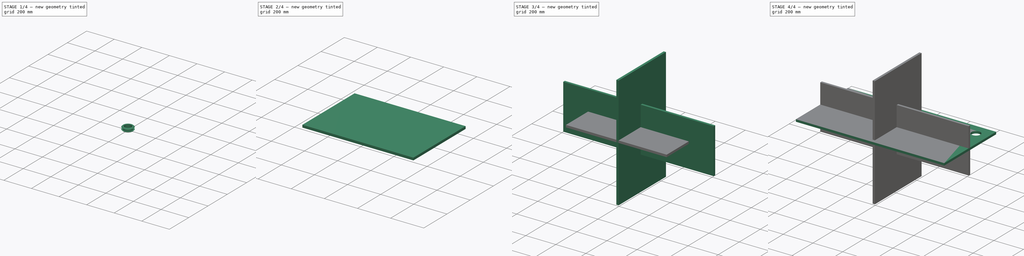
[diagram: build sequence overview — one tinted view per stage of 4, left to right]
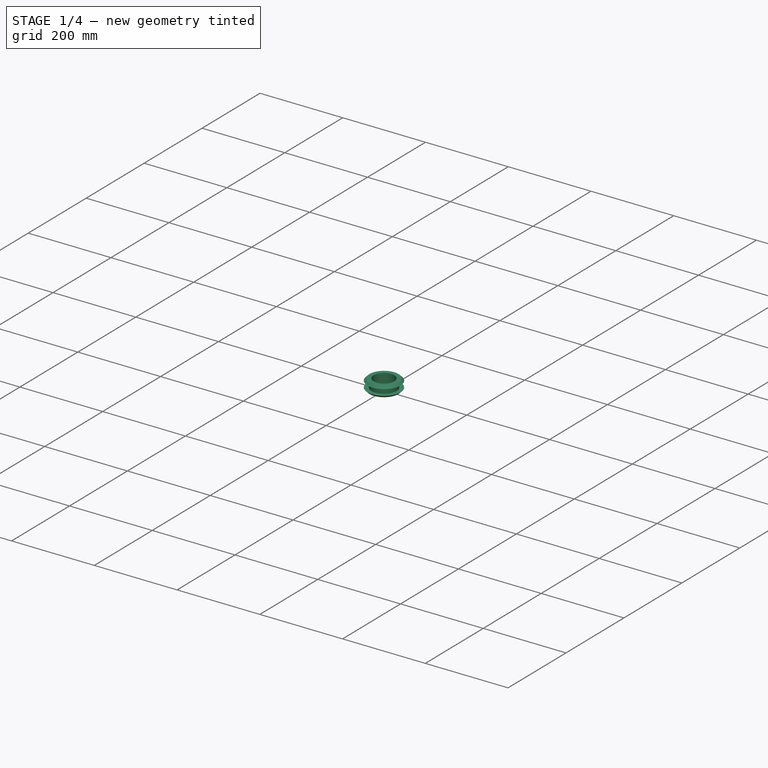
[diagram: stage 1 of 4 — iso view after this stage's code; geometry added in this stage tinted green]
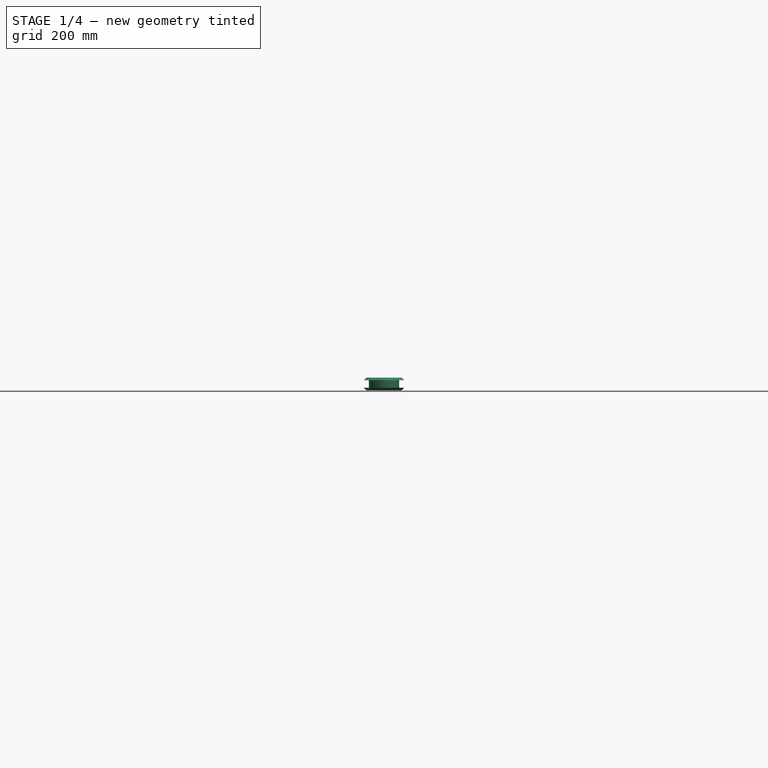
[diagram: stage 1 of 4 — front view after this stage's code; geometry added in this stage tinted green]
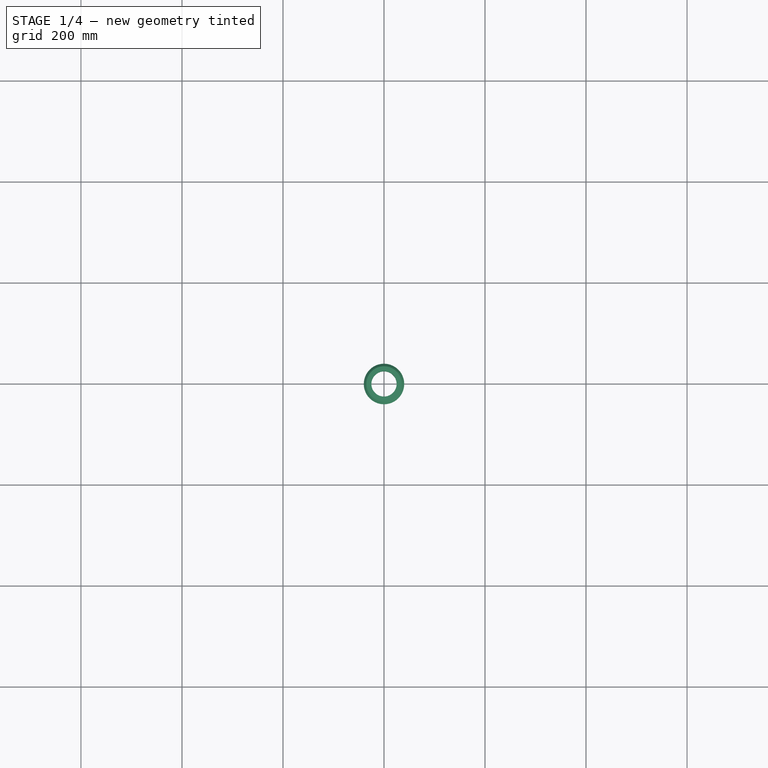
[diagram: stage 1 of 4 — top view after this stage's code; geometry added in this stage tinted green]
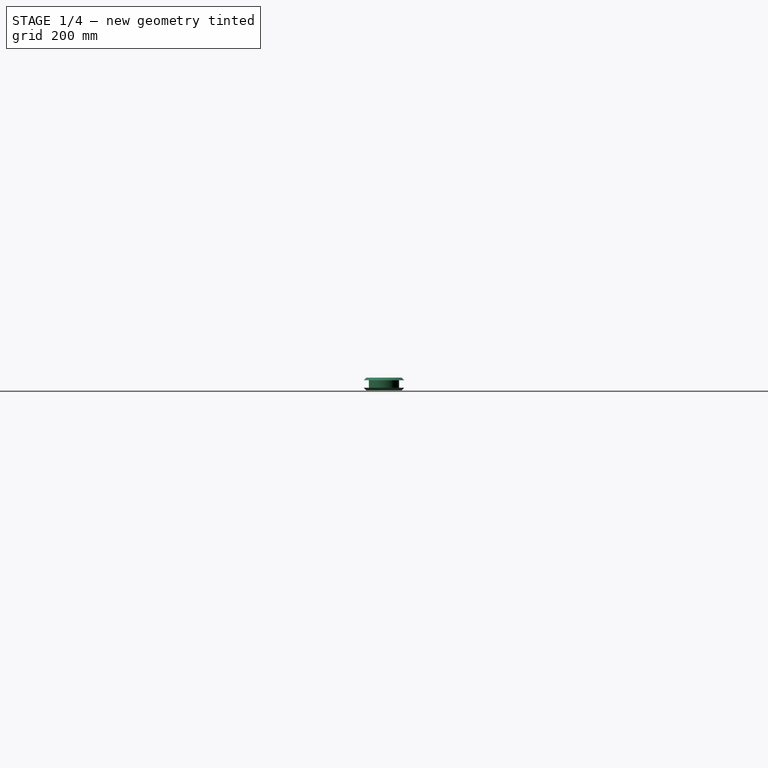
[diagram: stage 1 of 4 — right view after this stage's code; geometry added in this stage tinted green]
FCSTD DOCUMENT  (FreeCAD 0.20R29177 +426 (Git))
Label: ComputerDesk (100 x 50 x 75 cm WDH)
License: All rights reserved
objects: PartDesign::Body×9, Sketcher::SketchObject×8, PartDesign::Pad×7, PartDesign::Revolution×2
note: 35 computed .brp shape members not serialized (recipe doc carries the construction recipe); baked Part::Feature solids carry a one-line shape summary decoded from their .brp

FEATURE [PartDesign::Body] Body003  label="MiddlePnnel"
  Group = -> [Sketch003,Pad003]
  Origin = -> Origin003
  Placement = pos=(-202,23,123) rot=(0,0,1;0rad)
  Tip = -> Pad003
FEATURE [Sketcher::SketchObject] Sketch007
  FullyConstrained = true
  MapMode = 5
  Placement = pos=(0,0,0) rot=(1,0,0;1.5708rad)
  Support = -> [XZ_Plane007]
  sketch-geometry (9):
    g0: LineSegment StartX=25 StartY=12.5 StartZ=0 EndX=25 EndY=-12.5 EndZ=0
    g1: LineSegment StartX=25 StartY=-12.5 StartZ=0 EndX=35 EndY=-12.5 EndZ=0
    g2: LineSegment StartX=35 StartY=-12.5 StartZ=0 EndX=40 EndY=-7.5 EndZ=0
    g3: LineSegment StartX=40 StartY=-7.5 StartZ=0 EndX=30 EndY=-7.5 EndZ=0
    g4: LineSegment StartX=30 StartY=-7.5 StartZ=0 EndX=30 EndY=7.5 EndZ=0
    g5: LineSegment StartX=30 StartY=7.5 StartZ=0 EndX=40 EndY=7.5 EndZ=0
    g6: LineSegment StartX=40 StartY=7.5 StartZ=0 EndX=35 EndY=12.5 EndZ=0
    g7: LineSegment StartX=35 StartY=12.5 StartZ=0 EndX=25 EndY=12.5 EndZ=0
    g8: GeomPoint X=-30 Y=-7.5 Z=0
  constraints (24):
    c: Coincident(g0,g1)
    c: Horizontal(g1)
    c: Coincident(g1,g2)
    c: Coincident(g2,g3)
    c: Horizontal(g3)
    c: Coincident(g3,g4)
    c: Vertical(g4)
    c: Coincident(g4,g5)
    c: Horizontal(g5)
    c: Coincident(g5,g6)
    c: Coincident(g6,g7)
    c: Coincident(g7,g0)
    c: Horizontal(g7)
    c: Symmetric(g0,g0,g-1)
    c: DistanceY(g3,g4) = 15
    c: DistanceX(g0,g3) = 5
    c: DistanceY(g0,g3) = 5
    c: Angle(g3,g2) = 0.785398
    c: DistanceY(g4,g0) = 5
    c: Angle(g6,g5) = 0.785398
    c: Equal(g5,g3)
    c: DistanceX(g7,g7) = 10
    c: Symmetric(g8,g3,g-2)
    c: DistanceX(g8,g3) = 60
FEATURE [PartDesign::Revolution] Revolution
  Angle = 360
  Axis = (0,2e-16,1)
  Base = (0,0,0)
  Placement = pos=(0,0,0) rot=(1,0,0;1.5708rad)
  Profile = -> Sketch007
  ReferenceAxis = -> Sketch007 [V_Axis]
  Reversed = true
FEATURE [PartDesign::Body] Body007  label="CableManagementTop"
  Group = -> [Sketch007,Revolution]
  Origin = -> Origin007
  Placement = pos=(420,184,507) rot=(0,0,1;0rad)
  Tip = -> Revolution
FEATURE [PartDesign::Revolution] Revolution001
  Angle = 360
  Axis = (0,2e-16,1)
  Base = (0,0,0)
  Placement = pos=(0,0,0) rot=(1,0,0;1.5708rad)
  Profile = -> Sketch007
  ReferenceAxis = -> Sketch007 [V_Axis]
  Reversed = true
FEATURE [PartDesign::Body] Body008  label="CableManagementMiddle"
  Group = -> [Revolution001]
  Origin = -> Origin008
  Placement = pos=(-193.389,167.707,418) rot=(0,1,0;1.5708rad)
  Tip = -> Revolution001
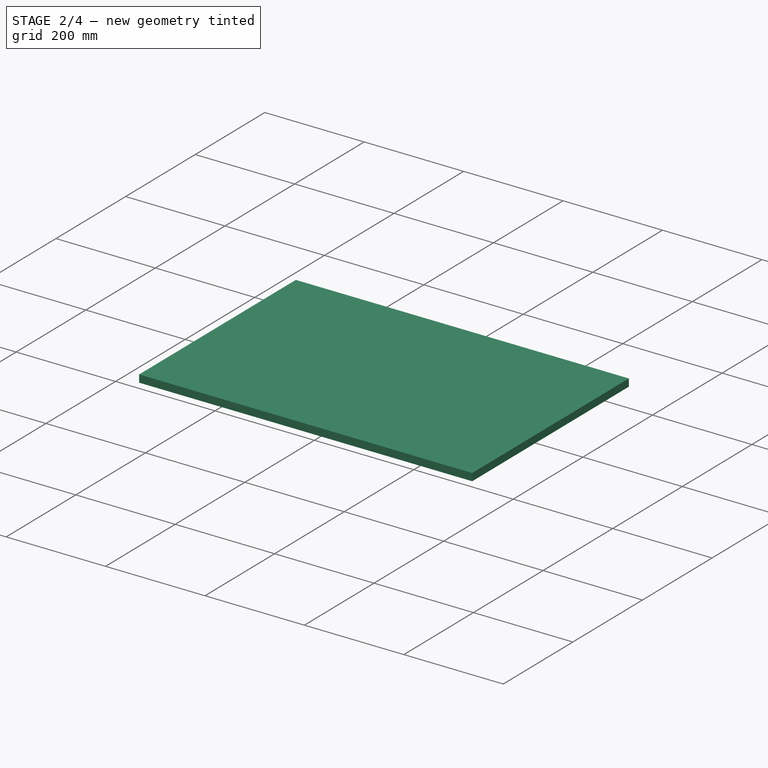
[diagram: stage 2 of 4 — iso view after this stage's code; geometry added in this stage tinted green]
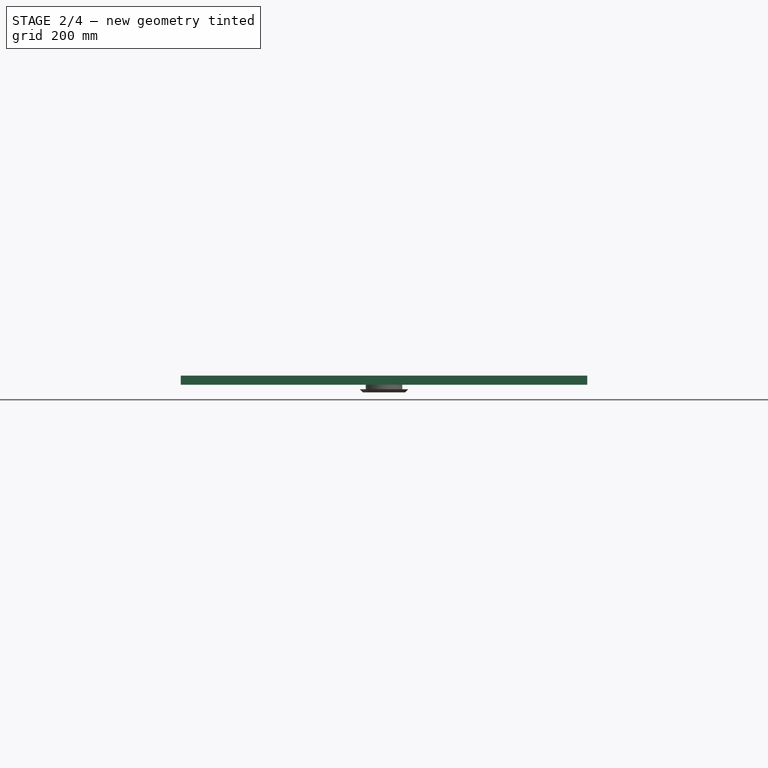
[diagram: stage 2 of 4 — front view after this stage's code; geometry added in this stage tinted green]
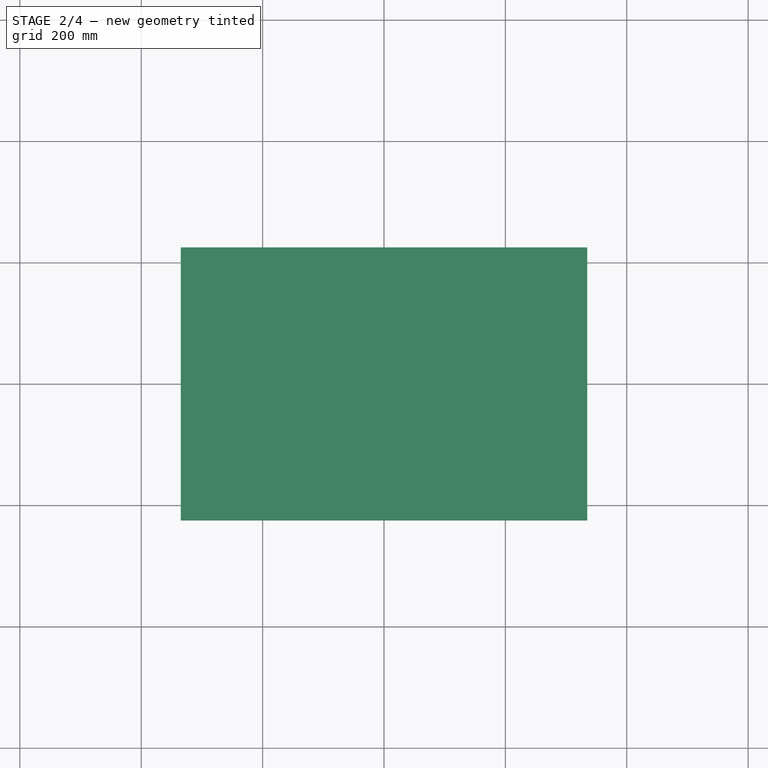
[diagram: stage 2 of 4 — top view after this stage's code; geometry added in this stage tinted green]
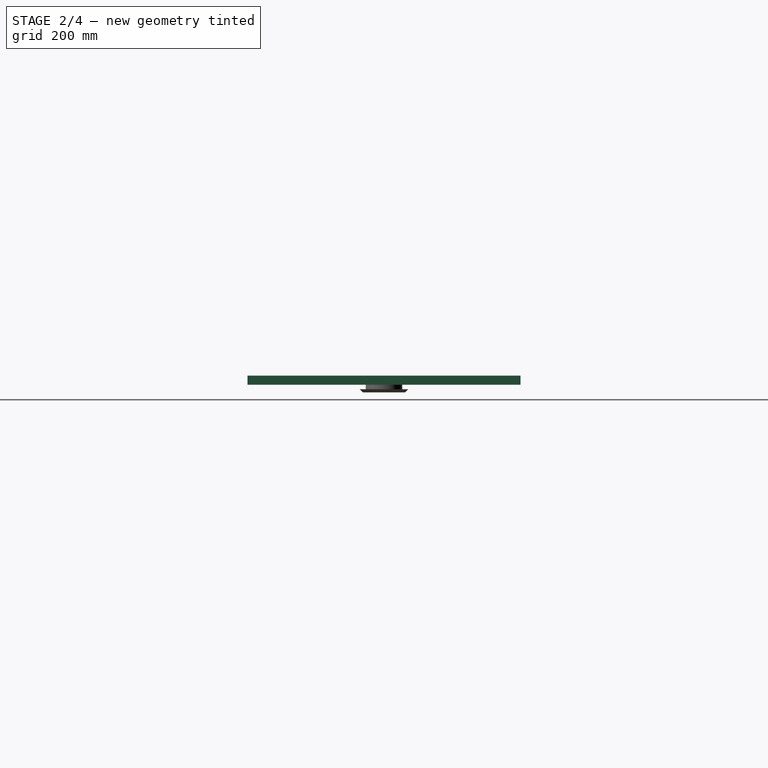
[diagram: stage 2 of 4 — right view after this stage's code; geometry added in this stage tinted green]
FEATURE [PartDesign::Body] Body004  label="RearPannel"
  Group = -> [Sketch004,Pad004]
  Origin = -> Origin004
  Placement = pos=(0,265,348) rot=(0,0,1;0rad)
  Tip = -> Pad004
FEATURE [Sketcher::SketchObject] Sketch005
  FullyConstrained = true
  MapMode = 5
  sketch-geometry (5):
    g0: LineSegment StartX=-145 StartY=225 StartZ=0 EndX=-145 EndY=-225 EndZ=0
    g1: LineSegment StartX=-145 StartY=-225 StartZ=0 EndX=145 EndY=-225 EndZ=0
    g2: LineSegment StartX=145 StartY=-225 StartZ=0 EndX=145 EndY=225 EndZ=0
    g3: LineSegment StartX=145 StartY=225 StartZ=0 EndX=-145 EndY=225 EndZ=0
    g4: GeomPoint X=0 Y=0 Z=0
  constraints (12):
    c: Coincident(g0,g1)
    c: Coincident(g1,g2)
    c: Coincident(g2,g3)
    c: Coincident(g3,g0)
    c: Horizontal(g1)
    c: Horizontal(g3)
    c: Vertical(g0)
    c: Vertical(g2)
    c: Symmetric(g1,g0,g4)
    c: Coincident(g4,g-1)
    c: DistanceY(g2,g2) = 450
    c: DistanceX(g3,g3) = 290
FEATURE [PartDesign::Pad] Pad005
  Direction = (0,0,1)
  Length = 15
  Length2 = 10
  Profile = -> Sketch005
  ReferenceAxis = -> Sketch005 [N_Axis]
  Type = 0
FEATURE [PartDesign::Body] Body005  label="BottomPannel"
  Group = -> [Sketch005,Pad005]
  Origin = -> Origin005
  Placement = pos=(-340,26,-204) rot=(0,0,1;0rad)
  Tip = -> Pad005
FEATURE [Sketcher::SketchObject] Sketch006
  FullyConstrained = true
  MapMode = 5
  Support = -> [XY_Plane006]
  sketch-geometry (5):
    g0: LineSegment StartX=-335 StartY=225 StartZ=0 EndX=-335 EndY=-225 EndZ=0
    g1: LineSegment StartX=-335 StartY=-225 StartZ=0 EndX=335 EndY=-225 EndZ=0
    g2: LineSegment StartX=335 StartY=-225 StartZ=0 EndX=335 EndY=225 EndZ=0
    g3: LineSegment StartX=335 StartY=225 StartZ=0 EndX=-335 EndY=225 EndZ=0
    g4: GeomPoint X=-1e-16 Y=0 Z=0
  constraints (12):
    c: Coincident(g0,g1)
    c: Coincident(g1,g2)
    c: Coincident(g2,g3)
    c: Coincident(g3,g0)
    c: Horizontal(g1)
    c: Horizontal(g3)
    c: Vertical(g0)
    c: Vertical(g2)
    c: Symmetric(g1,g0,g4)
    c: Coincident(g4,g-1)
    c: DistanceY(g2,g2) = 450
    c: DistanceX(g3,g3) = 670
FEATURE [PartDesign::Pad] Pad006
  Direction = (0,0,1)
  Length = 15
  Length2 = 10
  Profile = -> Sketch006
  ReferenceAxis = -> Sketch006 [N_Axis]
  Type = 0
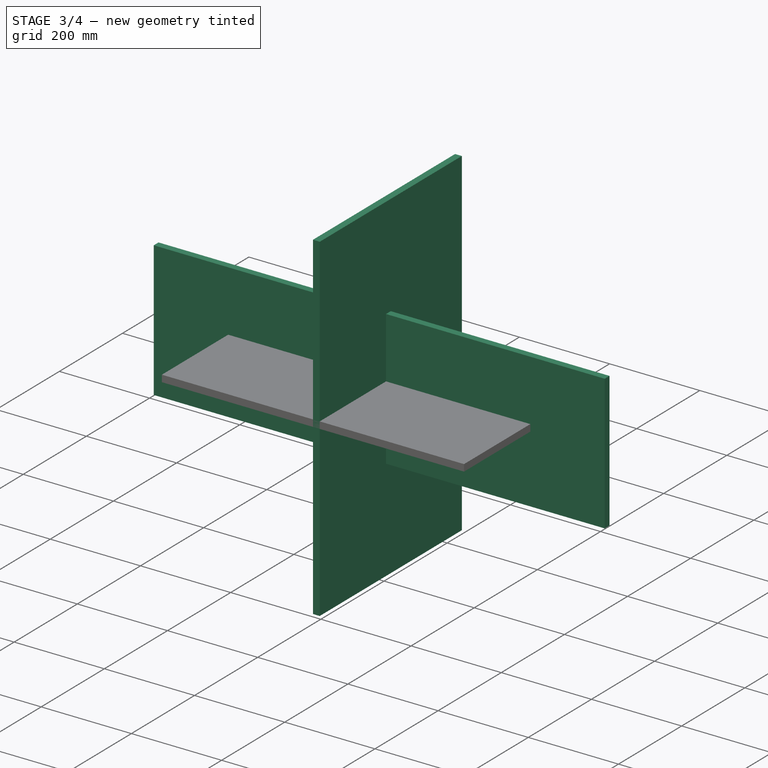
[diagram: stage 3 of 4 — iso view after this stage's code; geometry added in this stage tinted green]
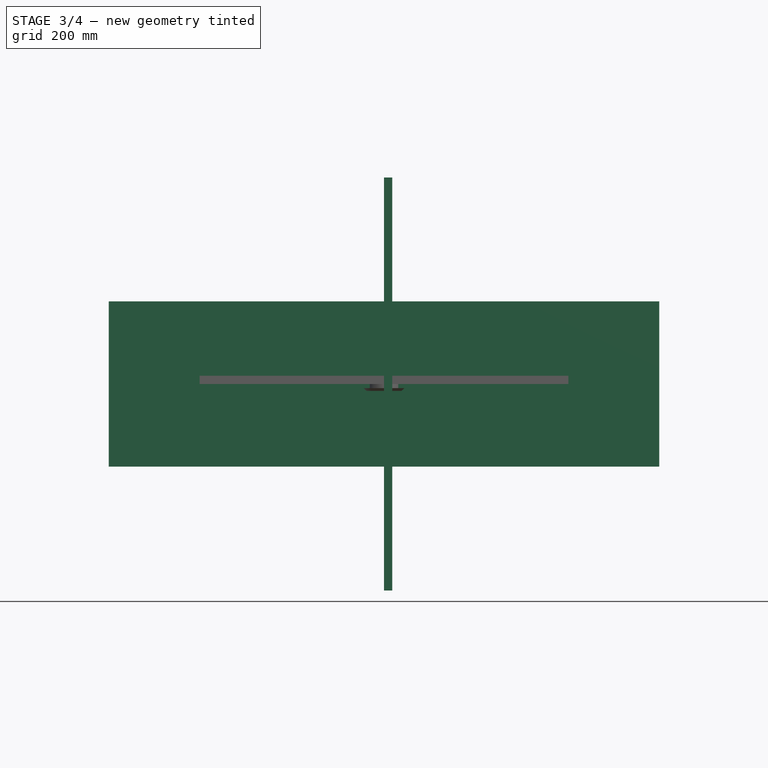
[diagram: stage 3 of 4 — front view after this stage's code; geometry added in this stage tinted green]
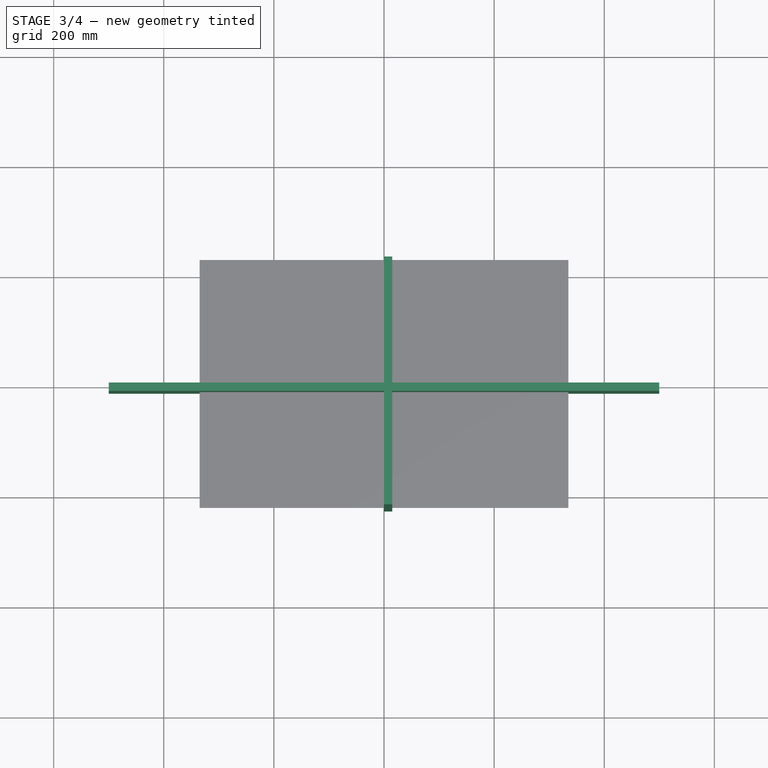
[diagram: stage 3 of 4 — top view after this stage's code; geometry added in this stage tinted green]
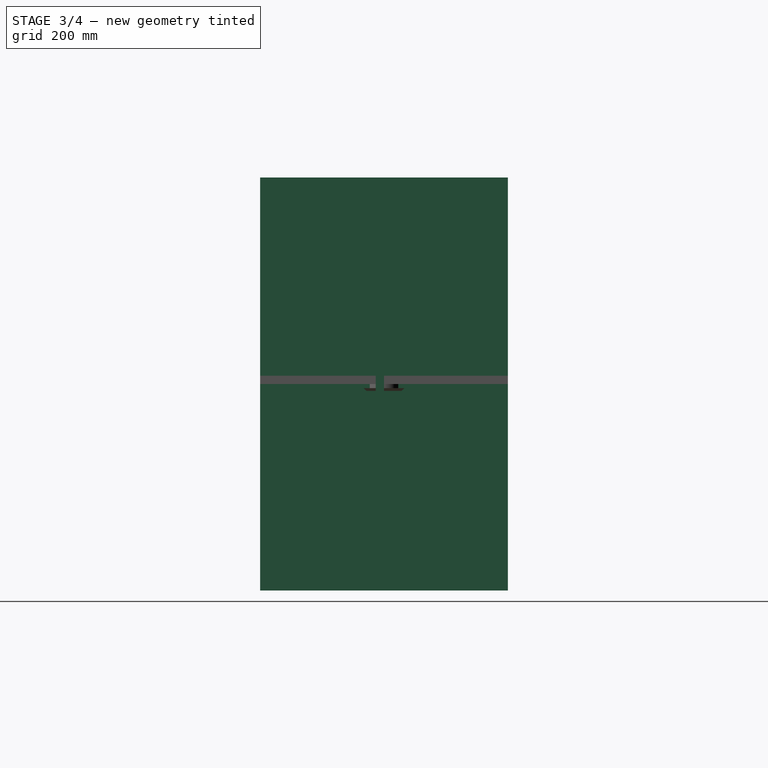
[diagram: stage 3 of 4 — right view after this stage's code; geometry added in this stage tinted green]
FEATURE [PartDesign::Body] Body001  label="LeftPannel"
  Group = -> [Sketch001,Pad001]
  Origin = -> Origin001
  Placement = pos=(-500,25,124) rot=(0,0,1;0rad)
  Tip = -> Pad001
FEATURE [Sketcher::SketchObject] Sketch004
  FullyConstrained = true
  MapMode = 5
  Placement = pos=(0,0,0) rot=(1,0,0;1.5708rad)
  Support = -> [XZ_Plane004]
  sketch-geometry (5):
    g0: LineSegment StartX=-500 StartY=150 StartZ=0 EndX=-500 EndY=-150 EndZ=0
    g1: LineSegment StartX=-500 StartY=-150 StartZ=0 EndX=500 EndY=-150 EndZ=0
    g2: LineSegment StartX=500 StartY=-150 StartZ=0 EndX=500 EndY=150 EndZ=0
    g3: LineSegment StartX=500 StartY=150 StartZ=0 EndX=-500 EndY=150 EndZ=0
    g4: GeomPoint X=0 Y=0 Z=0
  constraints (12):
    c: Coincident(g0,g1)
    c: Coincident(g1,g2)
    c: Coincident(g2,g3)
    c: Coincident(g3,g0)
    c: Horizontal(g1)
    c: Horizontal(g3)
    c: Vertical(g0)
    c: Vertical(g2)
    c: Symmetric(g1,g0,g4)
    c: Coincident(g4,g-1)
    c: DistanceX(g3,g3) = 1000
    c: DistanceY(g2,g2) = 300
FEATURE [PartDesign::Pad] Pad004
  Direction = (0,-1,2e-16)
  Length = 15
  Length2 = 10
  Placement = pos=(0,0,0) rot=(1,0,0;1.5708rad)
  Profile = -> Sketch004
  ReferenceAxis = -> Sketch004 [N_Axis]
  Type = 0
FEATURE [PartDesign::Body] Body006  label="KeyboardPannel"
  Group = -> [Sketch006,Pad006]
  Origin = -> Origin006
  Placement = pos=(147,-99,340) rot=(0,0,1;0rad)
  Tip = -> Pad006
FEATURE [Sketcher::SketchObject] Sketch002
  FullyConstrained = true
  MapMode = 5
  Placement = pos=(0,0,0) rot=(0.57735,0.57735,0.57735;2.0944rad)
  Support = -> [YZ_Plane002]
  sketch-geometry (5):
    g0: LineSegment StartX=-225 StartY=375 StartZ=0 EndX=-225 EndY=-375 EndZ=0
    g1: LineSegment StartX=-225 StartY=-375 StartZ=0 EndX=225 EndY=-375 EndZ=0
    g2: LineSegment StartX=225 StartY=-375 StartZ=0 EndX=225 EndY=375 EndZ=0
    g3: LineSegment StartX=225 StartY=375 StartZ=0 EndX=-225 EndY=375 EndZ=0
    g4: GeomPoint X=0 Y=0 Z=0
  constraints (12):
    c: Coincident(g0,g1)
    c: Coincident(g1,g2)
    c: Coincident(g2,g3)
    c: Coincident(g3,g0)
    c: Horizontal(g1)
    c: Horizontal(g3)
    c: Vertical(g0)
    c: Vertical(g2)
    c: Symmetric(g1,g0,g4)
    c: Coincident(g4,g-1)
    c: DistanceX(g3,g3) = 450
    c: DistanceY(g2,g2) = 750
FEATURE [PartDesign::Pad] Pad002
  Direction = (1,-2e-16,3e-16)
  Length = 15
  Length2 = 10
  Placement = pos=(0,0,0) rot=(0.57735,0.57735,0.57735;2.0944rad)
  Profile = -> Sketch002
  ReferenceAxis = -> Sketch002 [N_Axis]
  Type = 0
FEATURE [PartDesign::Body] Body002  label="RightPannel"
  Group = -> [Sketch002,Pad002]
  Origin = -> Origin002
  Placement = pos=(483,24,124) rot=(0,0,1;0rad)
  Tip = -> Pad002
FEATURE [Sketcher::SketchObject] Sketch003
  FullyConstrained = true
  MapMode = 5
  Placement = pos=(0,0,0) rot=(0.57735,0.57735,0.57735;2.0944rad)
  Support = -> [YZ_Plane003]
  sketch-geometry (6):
    g0: LineSegment StartX=-225 StartY=375 StartZ=0 EndX=-225 EndY=-375 EndZ=0
    g1: LineSegment StartX=-225 StartY=-375 StartZ=0 EndX=225 EndY=-375 EndZ=0
    g2: LineSegment StartX=225 StartY=-375 StartZ=0 EndX=225 EndY=375 EndZ=0
    g3: LineSegment StartX=225 StartY=375 StartZ=0 EndX=-225 EndY=375 EndZ=0
    g4: GeomPoint X=0 Y=0 Z=0
    g5: Circle CenterX=145 CenterY=295 CenterZ=0 NormalX=0 NormalY=0 NormalZ=1 AngleXU=0 Radius=30
  constraints (15):
    c: Coincident(g0,g1)
    c: Coincident(g1,g2)
    c: Coincident(g2,g3)
    c: Coincident(g3,g0)
    c: Horizontal(g1)
    c: Horizontal(g3)
    c: Vertical(g0)
    c: Vertical(g2)
    c: Symmetric(g1,g0,g4)
    c: Coincident(g4,g-1)
    c: DistanceX(g3,g3) = 450
    c: DistanceY(g2,g2) = 750
    c: Diameter(g5) = 60
    c: DistanceY(g5,g2) = 80
    c: DistanceX(g5,g2) = 80
FEATURE [PartDesign::Pad] Pad003
  Direction = (1,-2e-16,3e-16)
  Length = 15
  Length2 = 10
  Placement = pos=(0,0,0) rot=(0.57735,0.57735,0.57735;2.0944rad)
  Profile = -> Sketch003
  ReferenceAxis = -> Sketch003 [N_Axis]
  Type = 0
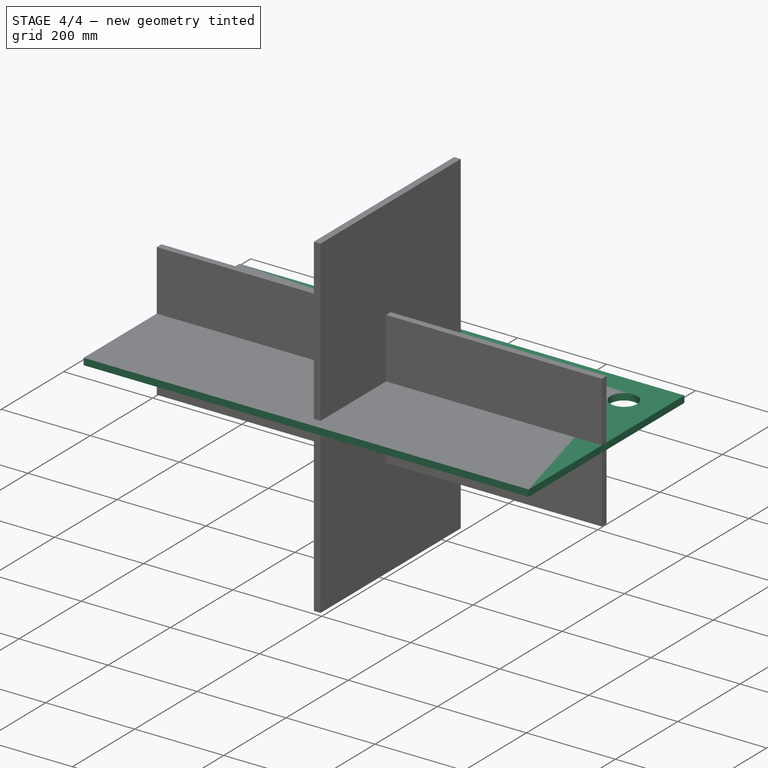
[diagram: stage 4 of 4 — iso view after this stage's code; geometry added in this stage tinted green]
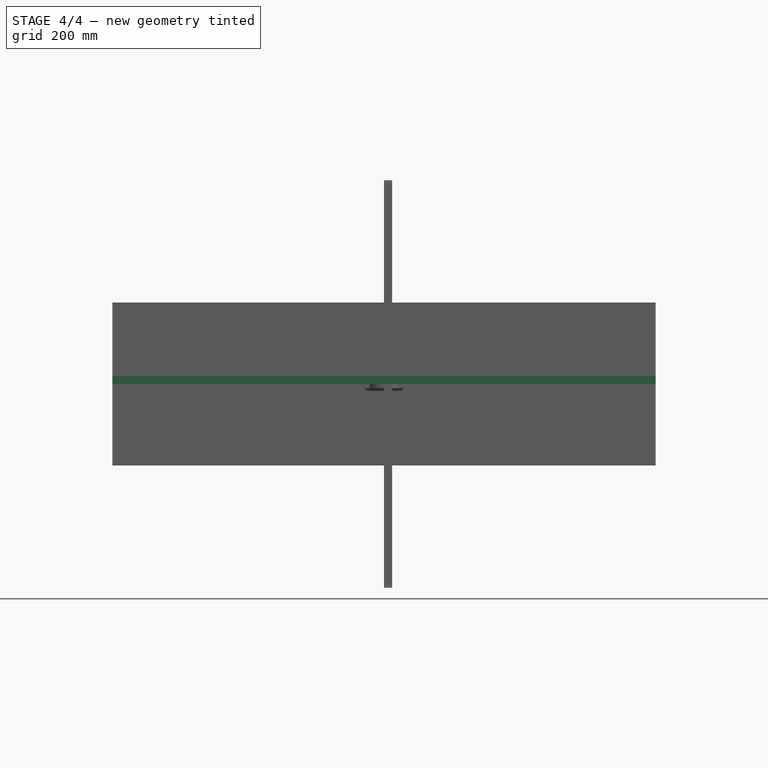
[diagram: stage 4 of 4 — front view after this stage's code; geometry added in this stage tinted green]
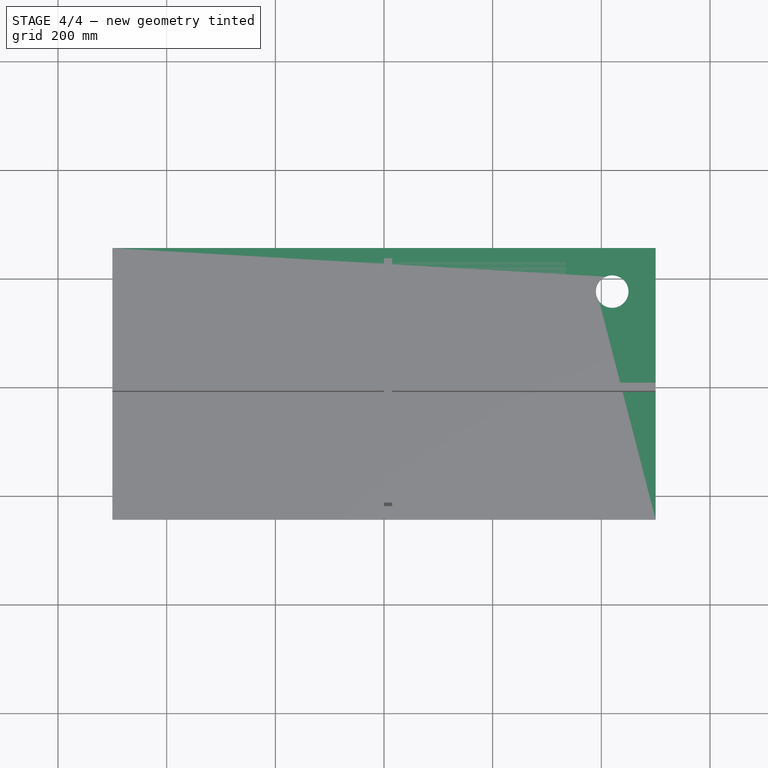
[diagram: stage 4 of 4 — top view after this stage's code; geometry added in this stage tinted green]
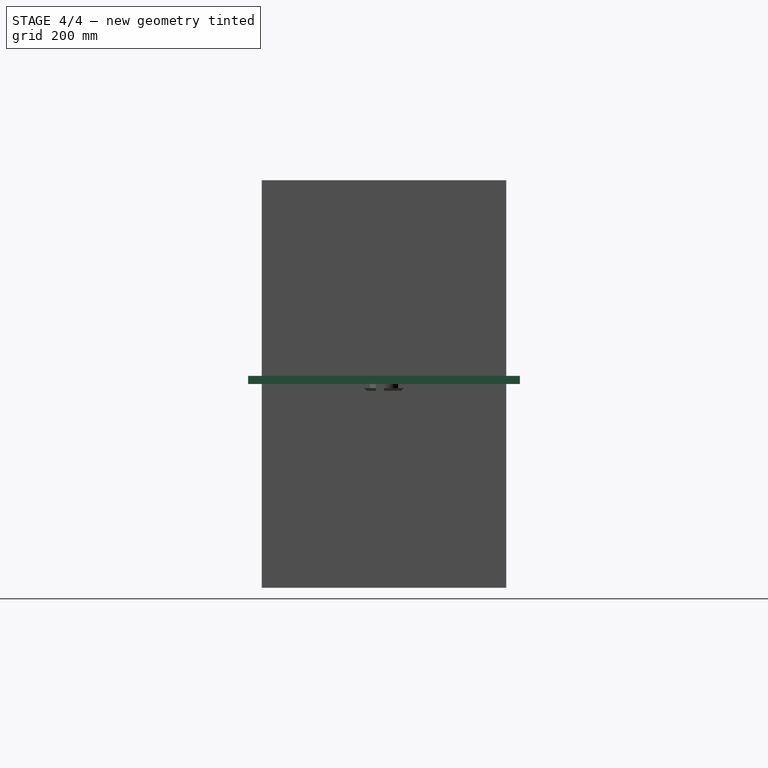
[diagram: stage 4 of 4 — right view after this stage's code; geometry added in this stage tinted green]
FEATURE [Sketcher::SketchObject] Sketch
  FullyConstrained = true
  MapMode = 5
  Support = -> [XY_Plane]
  sketch-geometry (6):
    g0: LineSegment StartX=-500 StartY=250 StartZ=0 EndX=-500 EndY=-250 EndZ=0
    g1: LineSegment StartX=-500 StartY=-250 StartZ=0 EndX=500 EndY=-250 EndZ=0
    g2: LineSegment StartX=500 StartY=-250 StartZ=0 EndX=500 EndY=250 EndZ=0
    g3: LineSegment StartX=500 StartY=250 StartZ=0 EndX=-500 EndY=250 EndZ=0
    g4: GeomPoint X=0 Y=0 Z=0
    g5: Circle CenterX=420 CenterY=170 CenterZ=0 NormalX=0 NormalY=0 NormalZ=1 AngleXU=0 Radius=30
  constraints (15):
    c: Coincident(g0,g1)
    c: Coincident(g1,g2)
    c: Coincident(g2,g3)
    c: Coincident(g3,g0)
    c: Horizontal(g1)
    c: Horizontal(g3)
    c: Vertical(g0)
    c: Vertical(g2)
    c: Symmetric(g1,g0,g4)
    c: Coincident(g4,g-1)
    c: DistanceX(g3,g3) = 1000
    c: DistanceY(g2,g2) = 500
    c: Diameter(g5) = 60
    c: DistanceY(g5,g2) = 80
    c: DistanceX(g5,g2) = 80
FEATURE [PartDesign::Pad] Pad
  Direction = (0,0,1)
  Length = 15
  Length2 = 10
  Profile = -> Sketch
  ReferenceAxis = -> Sketch [N_Axis]
  Type = 0
FEATURE [PartDesign::Body] Body  label="TopPannel"
  Group = -> [Sketch,Pad]
  Origin = -> Origin
  Placement = pos=(0,14,499) rot=(0,0,1;0rad)
  Tip = -> Pad
FEATURE [Sketcher::SketchObject] Sketch001
  FullyConstrained = true
  MapMode = 5
  Placement = pos=(0,0,0) rot=(0.57735,0.57735,0.57735;2.0944rad)
  Support = -> [YZ_Plane001]
  sketch-geometry (5):
    g0: LineSegment StartX=-225 StartY=375 StartZ=0 EndX=-225 EndY=-375 EndZ=0
    g1: LineSegment StartX=-225 StartY=-375 StartZ=0 EndX=225 EndY=-375 EndZ=0
    g2: LineSegment StartX=225 StartY=-375 StartZ=0 EndX=225 EndY=375 EndZ=0
    g3: LineSegment StartX=225 StartY=375 StartZ=0 EndX=-225 EndY=375 EndZ=0
    g4: GeomPoint X=0 Y=0 Z=0
  constraints (12):
    c: Coincident(g0,g1)
    c: Coincident(g1,g2)
    c: Coincident(g2,g3)
    c: Coincident(g3,g0)
    c: Horizontal(g1)
    c: Horizontal(g3)
    c: Vertical(g0)
    c: Vertical(g2)
    c: Symmetric(g1,g0,g4)
    c: Coincident(g4,g-1)
    c: DistanceX(g3,g3) = 450
    c: DistanceY(g2,g2) = 750
FEATURE [PartDesign::Pad] Pad001
  Direction = (1,-2e-16,3e-16)
  Length = 15
  Length2 = 10
  Placement = pos=(0,0,0) rot=(0.57735,0.57735,0.57735;2.0944rad)
  Profile = -> Sketch001
  ReferenceAxis = -> Sketch001 [N_Axis]
  Type = 0
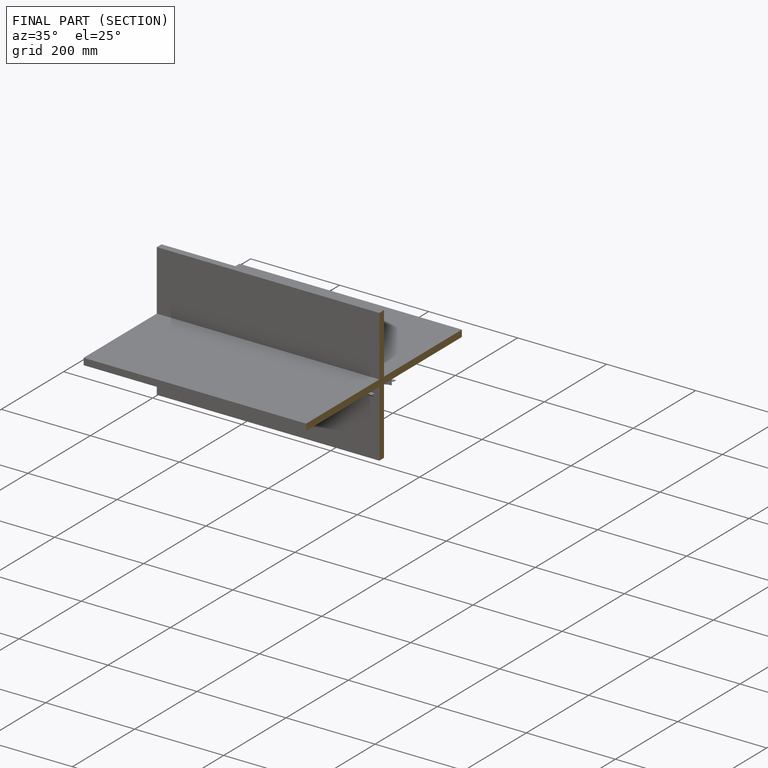
[diagram: finished part — half-section view (interior)]
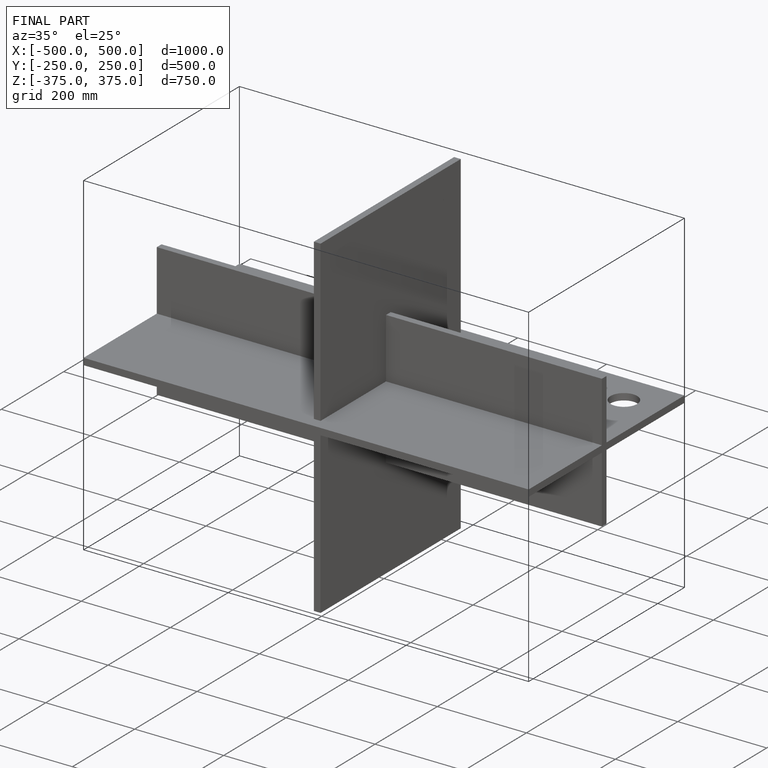
[diagram: finished part — iso view with bounding-box wireframe]
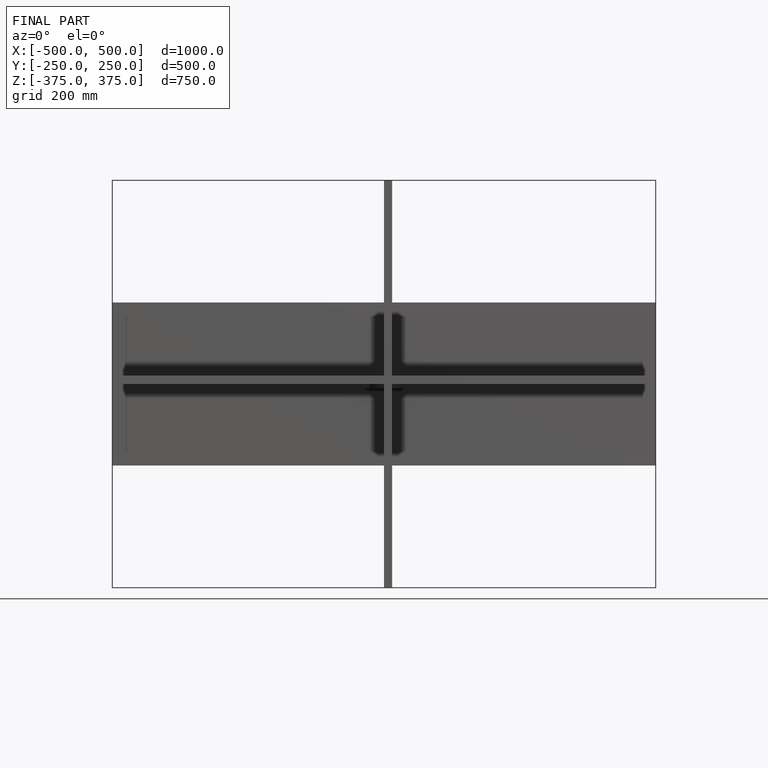
[diagram: finished part — front view with bounding-box wireframe]
